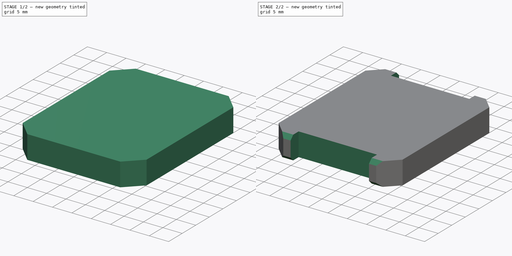
[diagram: build sequence overview — one tinted view per stage of 2, left to right]
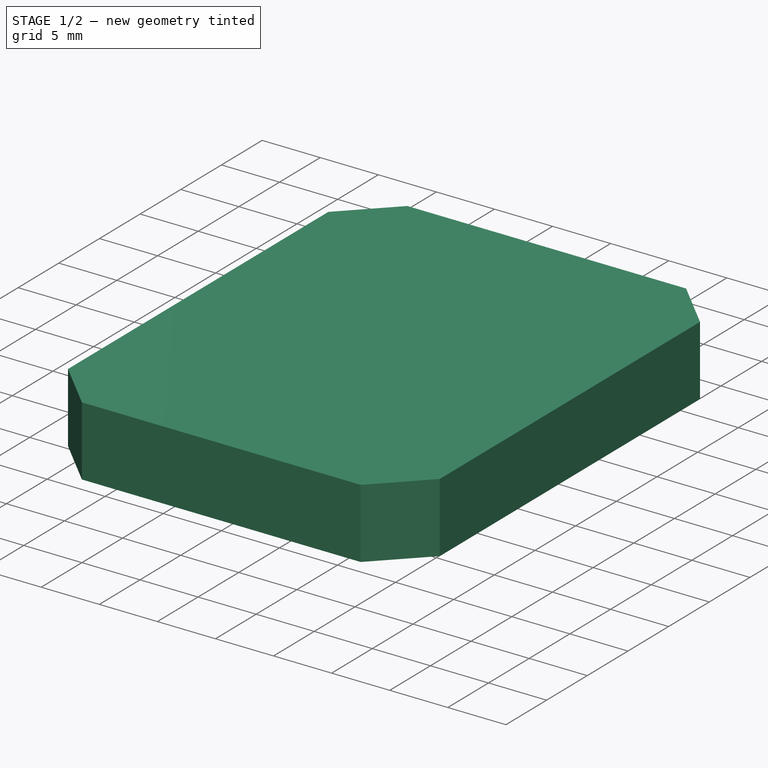
[diagram: stage 1 of 2 — iso view after this stage's code; geometry added in this stage tinted green]
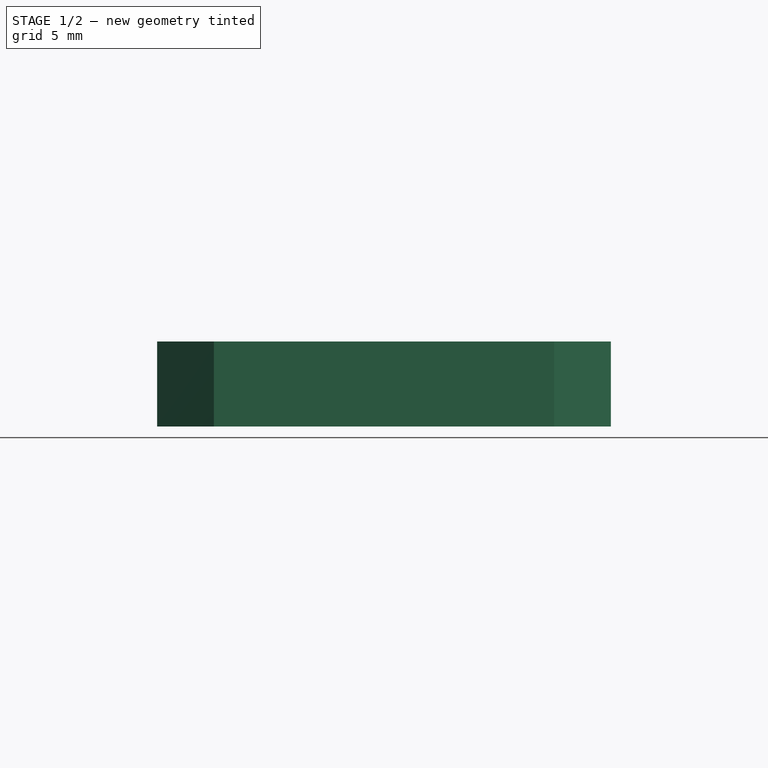
[diagram: stage 1 of 2 — front view after this stage's code; geometry added in this stage tinted green]
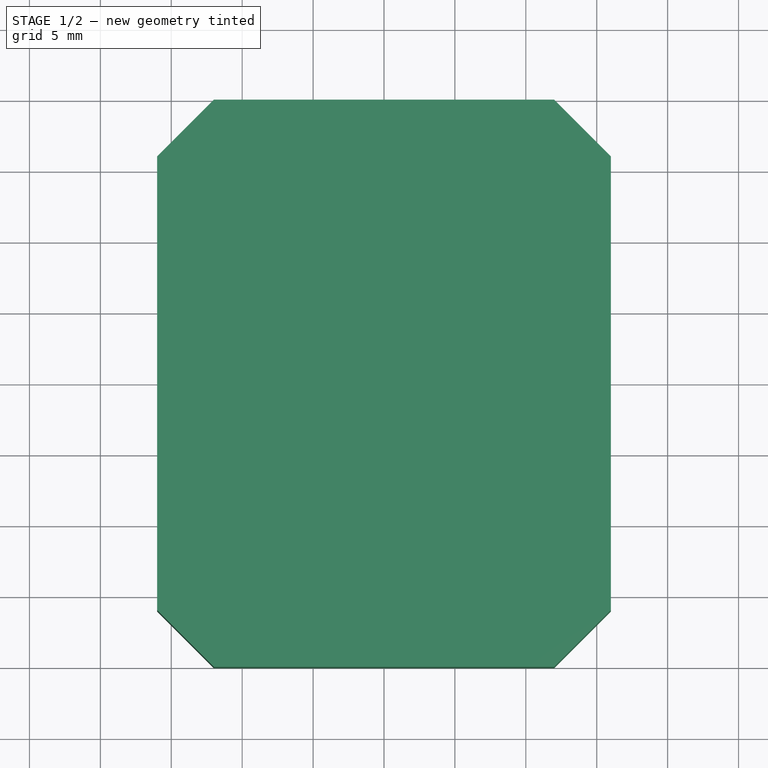
[diagram: stage 1 of 2 — top view after this stage's code; geometry added in this stage tinted green]
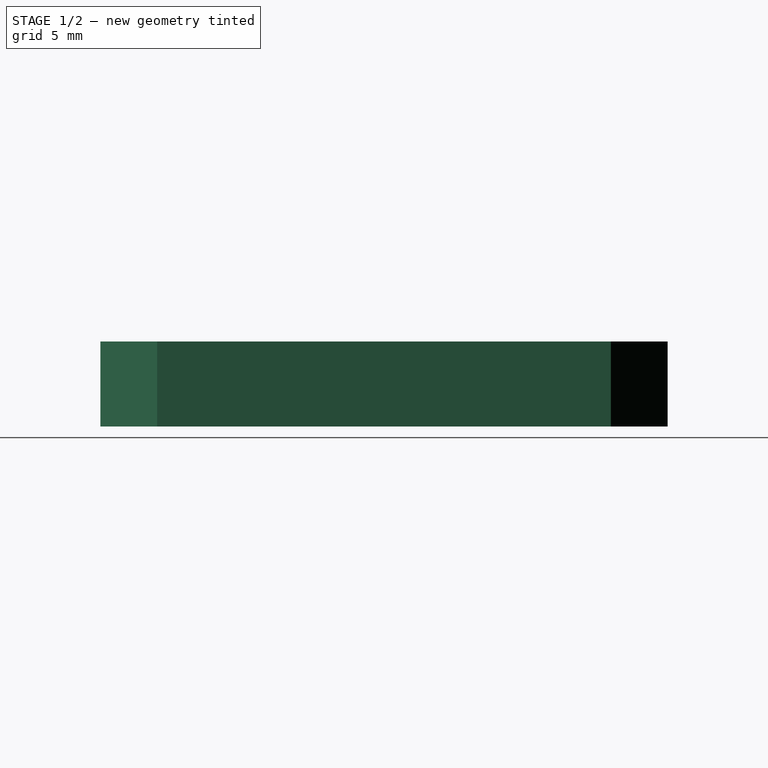
[diagram: stage 1 of 2 — right view after this stage's code; geometry added in this stage tinted green]
FCSTD DOCUMENT  (FreeCAD 1.1R20260414 (Git shallow))
Label: OutlineA0
License: All rights reserved
LicenseURL: https://en.wikipedia.org/wiki/All_rights_reserved
objects: Sketcher::SketchObject×2, PartDesign::Chamfer×2, App::Point×1, PartDesign::Pad×1, PartDesign::Pocket×1, PartDesign::Body×1
note: 17 computed .brp shape members not serialized (recipe doc carries the construction recipe); baked Part::Feature solids carry a one-line shape summary decoded from their .brp

FEATURE [App::Point] Origin001
  Role = Origin
FEATURE [Sketcher::SketchObject] Sketch
  ArcFitTolerance = 1e-06
  AttachmentSupport = -> [Origin]
  ExternalTypes = [0]
  FullyConstrained = true
  MakeInternals = false
  MapMode = 5
  _ExternalGeoVersion = 1
  sketch-geometry (11):
    g0: ArcOfCircle [constr] CenterX=0 CenterY=3 CenterZ=0 NormalX=0 NormalY=0 NormalZ=1 AngleXU=0 Radius=13 StartAngle=1e-16 EndAngle=3.14159
    g1: ArcOfCircle [constr] CenterX=0 CenterY=-3 CenterZ=0 NormalX=0 NormalY=0 NormalZ=1 AngleXU=0 Radius=13 StartAngle=3.14159 EndAngle=6.28319
    g2: LineSegment [constr] StartX=13 StartY=3 StartZ=0 EndX=13 EndY=-3 EndZ=0
    g3: LineSegment [constr] StartX=-13 StartY=3 StartZ=0 EndX=-13 EndY=-3 EndZ=0
    g4: GeomPoint X=0 Y=16 Z=0
    g5: GeomPoint X=0 Y=-16 Z=0
    g6: LineSegment StartX=-16 StartY=-20 StartZ=0 EndX=16 EndY=-20 EndZ=0
    g7: LineSegment StartX=16 StartY=-20 StartZ=0 EndX=16 EndY=20 EndZ=0
    g8: LineSegment StartX=16 StartY=20 StartZ=0 EndX=-16 EndY=20 EndZ=0
    g9: LineSegment StartX=-16 StartY=20 StartZ=0 EndX=-16 EndY=-20 EndZ=0
    g10: GeomPoint [constr] X=0 Y=0 Z=0
  constraints (25):
    c: Tangent(g0,g2) = 1.5708
    c: Tangent(g0,g3) = -1.5708
    c: Tangent(g1,g2) = 1.5708
    c: Tangent(g1,g3) = -1.5708
    c: Equal(g0,g1)
    c: Symmetric(g0,g1,g-1)
    c: PointOnObject(g0,g-2)
    c: PointOnObject(g4,g0)
    c: PointOnObject(g5,g1)
    c: PointOnObject(g4,g-2)
    c: PointOnObject(g5,g-2)
    c: DistanceY(g-1,g4) = 16
    c: DistanceX(g0,g0) = 26
    c: Coincident(g6,g7)
    c: Coincident(g7,g8)
    c: Coincident(g8,g9)
    c: Coincident(g9,g6)
    c: Horizontal(g6)
    c: Horizontal(g8)
    c: Vertical(g7)
    c: Vertical(g9)
    c: Symmetric(g8,g6,g10)
    c: Distance(g7,g9) = 32
    c: Distance(g6,g8) = 40
    c: Coincident(g10,g-1)
FEATURE [PartDesign::Pad] Pad
  Direction = (0,0,1)
  Length = 6
  Length2 = 10
  Profile = -> Sketch
  ReferenceAxis = -> Sketch [N_Axis]
  Refine = true
  SideType = 0
  Suppressed = false
  Type = 0
  Type2 = 0
FEATURE [PartDesign::Chamfer] Chamfer
  Angle = 45
  Base = -> Pad [Edge5,Edge2,Edge8,Edge1]
  BaseFeature = -> Pad
  ChamferType = 0
  FlipDirection = false
  Refine = true
  Size = 4
  Size2 = 1
  SupportTransform = false
  Suppressed = false
  UseAllEdges = false
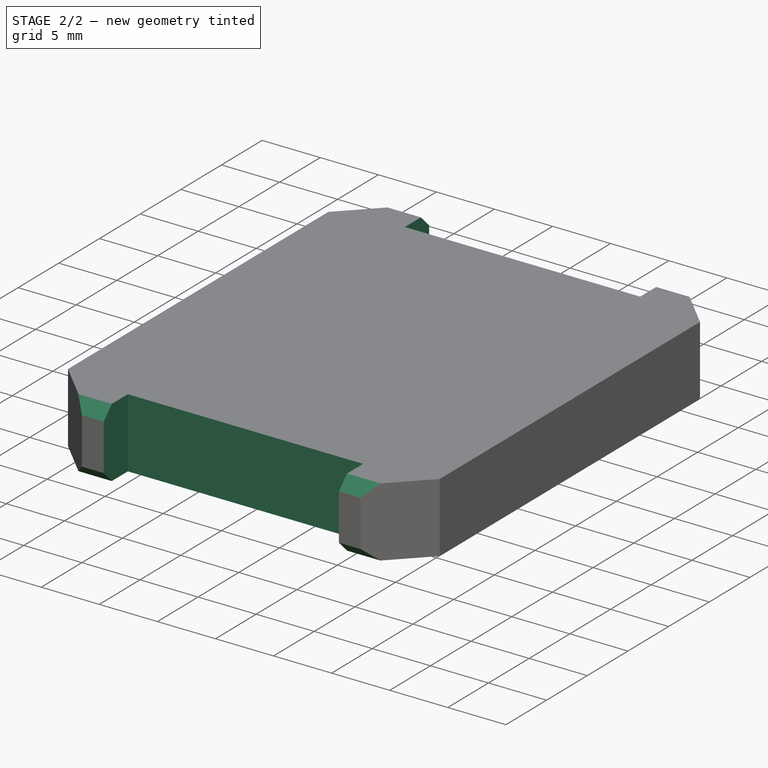
[diagram: stage 2 of 2 — iso view after this stage's code; geometry added in this stage tinted green]
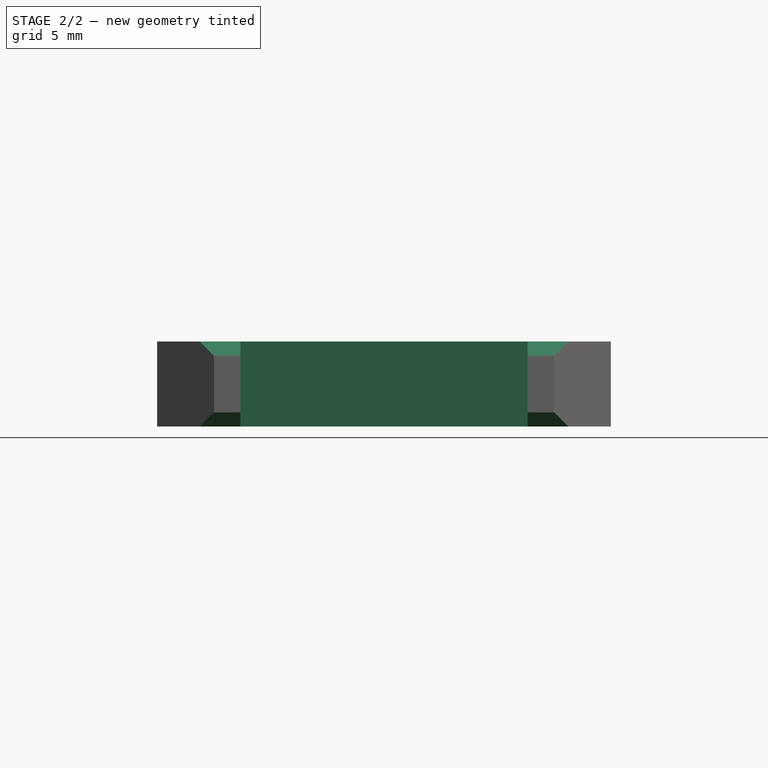
[diagram: stage 2 of 2 — front view after this stage's code; geometry added in this stage tinted green]
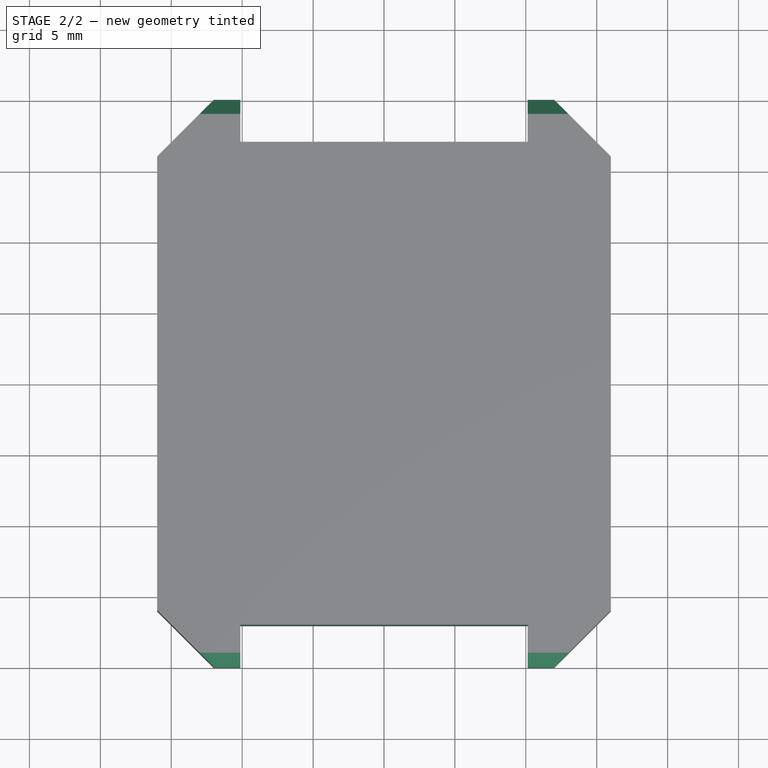
[diagram: stage 2 of 2 — top view after this stage's code; geometry added in this stage tinted green]
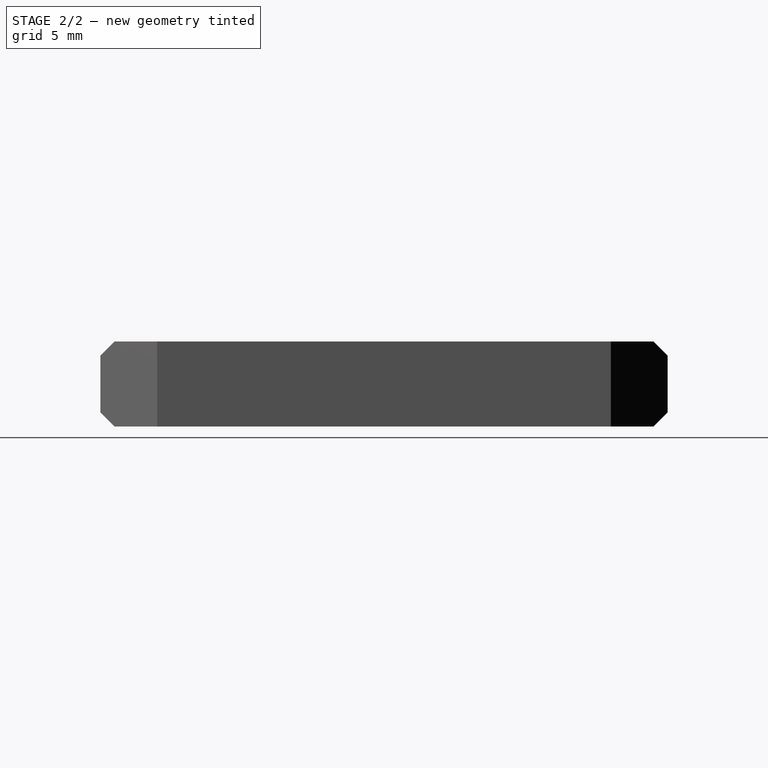
[diagram: stage 2 of 2 — right view after this stage's code; geometry added in this stage tinted green]
FEATURE [PartDesign::Chamfer] Chamfer001
  Angle = 45
  Base = -> Chamfer [Edge1,Edge4,Edge11,Edge20]
  BaseFeature = -> Chamfer
  ChamferType = 0
  FlipDirection = false
  Refine = true
  Size = 1
  Size2 = 1
  SupportTransform = false
  Suppressed = false
  UseAllEdges = false
FEATURE [Sketcher::SketchObject] Sketch001
  ArcFitTolerance = 1e-06
  AttachmentSupport = -> [Chamfer001]
  ExternalTypes = [0]
  FullyConstrained = false
  MakeInternals = false
  MapMode = 5
  Placement = pos=(0,0,6) rot=(0,0,1;0rad)
  _ExternalGeoVersion = 1
  sketch-geometry (10):
    g0: LineSegment StartX=-10.125 StartY=-37.0317 StartZ=0 EndX=10.125 EndY=-37.0317 EndZ=0
    g1: LineSegment StartX=10.125 StartY=-37.0317 StartZ=0 EndX=10.125 EndY=-17.0317 EndZ=0
    g2: LineSegment StartX=10.125 StartY=-17.0317 StartZ=0 EndX=-10.125 EndY=-17.0317 EndZ=0
    g3: LineSegment StartX=-10.125 StartY=-17.0317 StartZ=0 EndX=-10.125 EndY=-37.0317 EndZ=0
    g4: GeomPoint [constr] X=0 Y=-27.0317 Z=0
    g5: LineSegment StartX=-10.125 StartY=37.0317 StartZ=0 EndX=10.125 EndY=37.0317 EndZ=0
    g6: LineSegment StartX=10.125 StartY=37.0317 StartZ=0 EndX=10.125 EndY=17.0317 EndZ=0
    g7: LineSegment StartX=10.125 StartY=17.0317 StartZ=0 EndX=-10.125 EndY=17.0317 EndZ=0
    g8: LineSegment StartX=-10.125 StartY=17.0317 StartZ=0 EndX=-10.125 EndY=37.0317 EndZ=0
    g9: GeomPoint [constr] X=0 Y=27.0317 Z=0
  constraints (24):
    c: Coincident(g0,g1)
    c: Coincident(g1,g2)
    c: Coincident(g2,g3)
    c: Coincident(g3,g0)
    c: Horizontal(g0)
    c: Horizontal(g2)
    c: Vertical(g1)
    c: Vertical(g3)
    c: Symmetric(g2,g0,g4)
    c: Distance(g1,g3) = 20.25
    c: Distance(g0,g2) = 20
    c: PointOnObject(g4,g-2)
    c: Coincident(g5,g6)
    c: Coincident(g6,g7)
    c: Coincident(g7,g8)
    c: Coincident(g8,g5)
    c: Horizontal(g5)
    c: Horizontal(g7)
    c: Vertical(g6)
    c: Vertical(g8)
    c: Symmetric(g7,g5,g9)
    c: Distance(g6,g8) = 20.25
    c: Distance(g5,g7) = 20
    c: Symmetric(g9,g4,g-1)
FEATURE [PartDesign::Pocket] Pocket
  BaseFeature = -> Chamfer001
  Direction = (0,0,-1)
  Length = 10
  Length2 = 5
  Profile = -> Sketch001
  ReferenceAxis = -> Sketch001 [N_Axis]
  Refine = true
  SideType = 0
  Suppressed = false
  Type = 0
  Type2 = 0
FEATURE [PartDesign::Body] Body
  AllowCompound = true
  Group = -> [Sketch,Pad,Chamfer,Chamfer001,Sketch001,Pocket]
  Origin = -> Origin
  Tip = -> Pocket
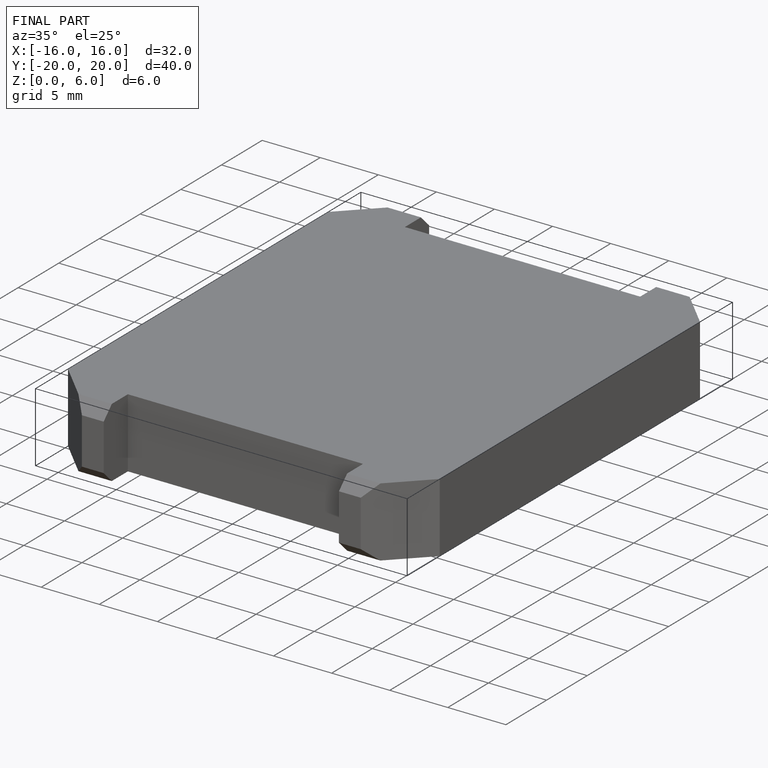
[diagram: finished part — iso view with bounding-box wireframe]
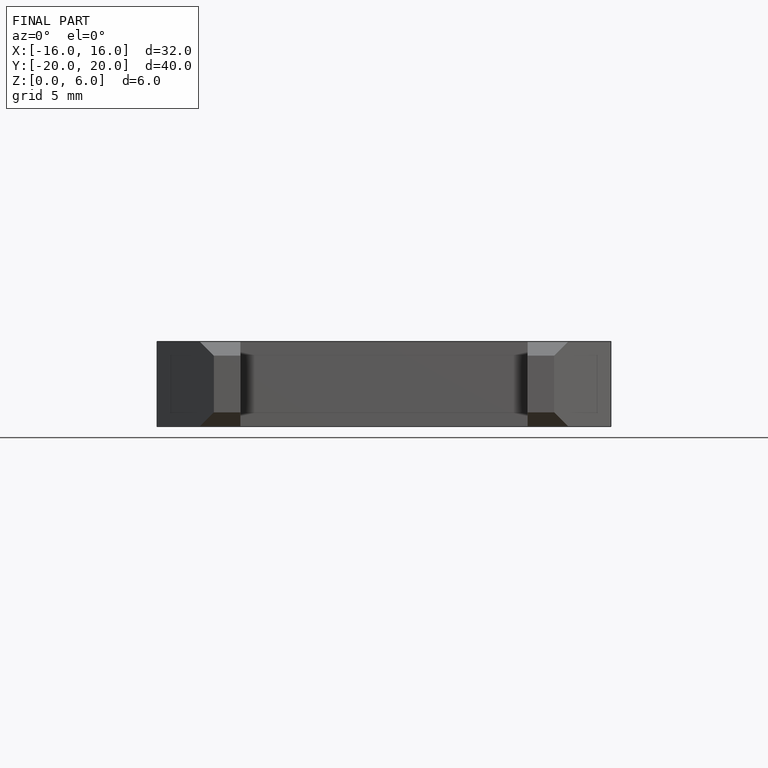
[diagram: finished part — front view with bounding-box wireframe]
